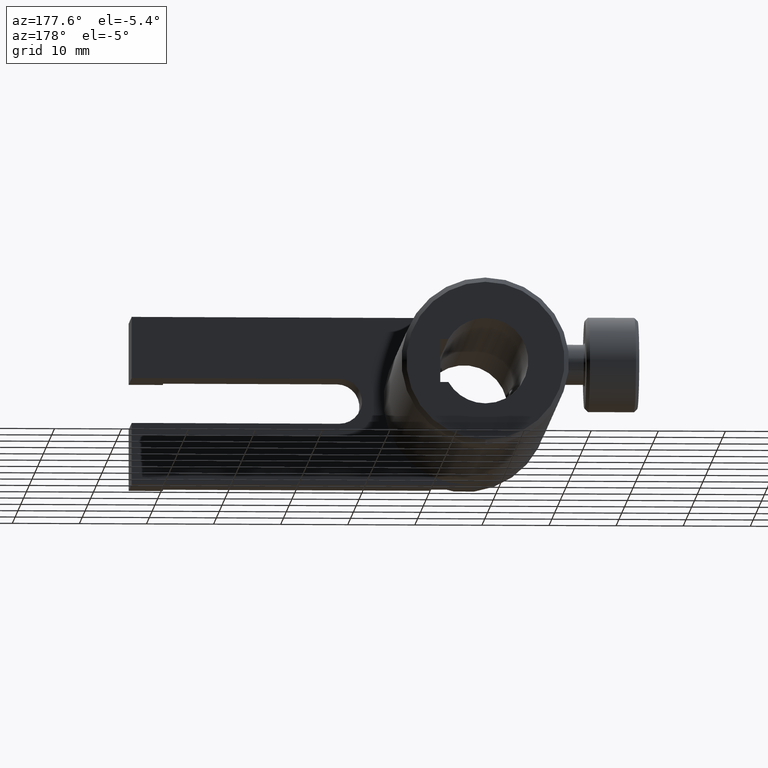
[diagram: clean part render]
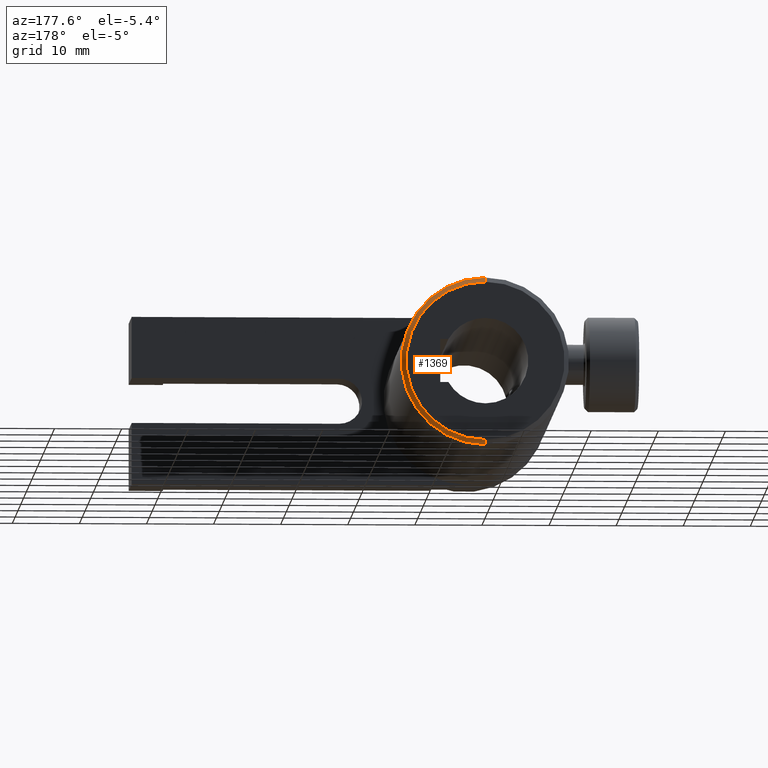
[diagram: same view with one face highlighted and labeled with its STEP entity id]
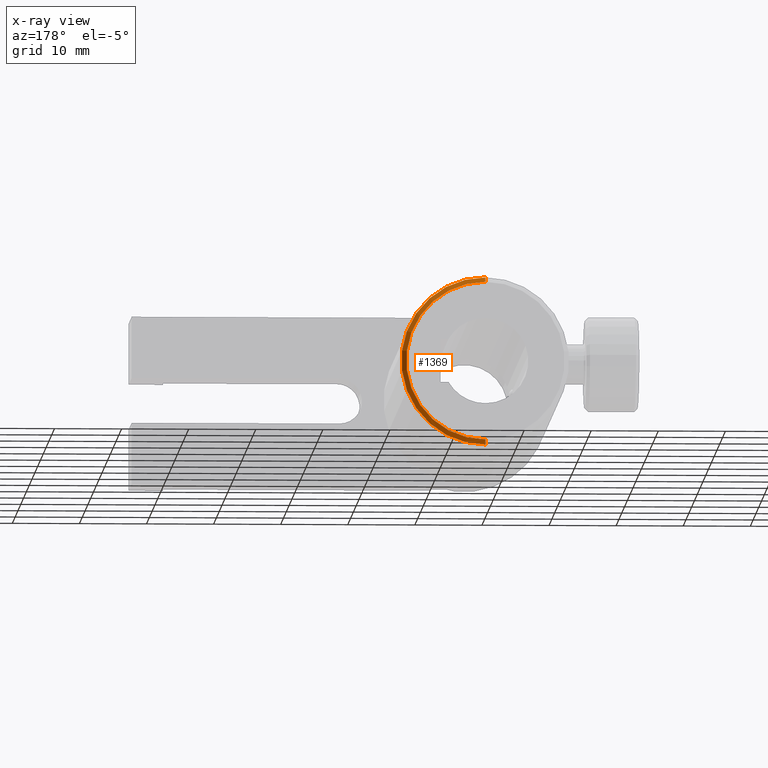
[diagram: x-ray of the same camera — body ghosted, the highlighted face saturated]
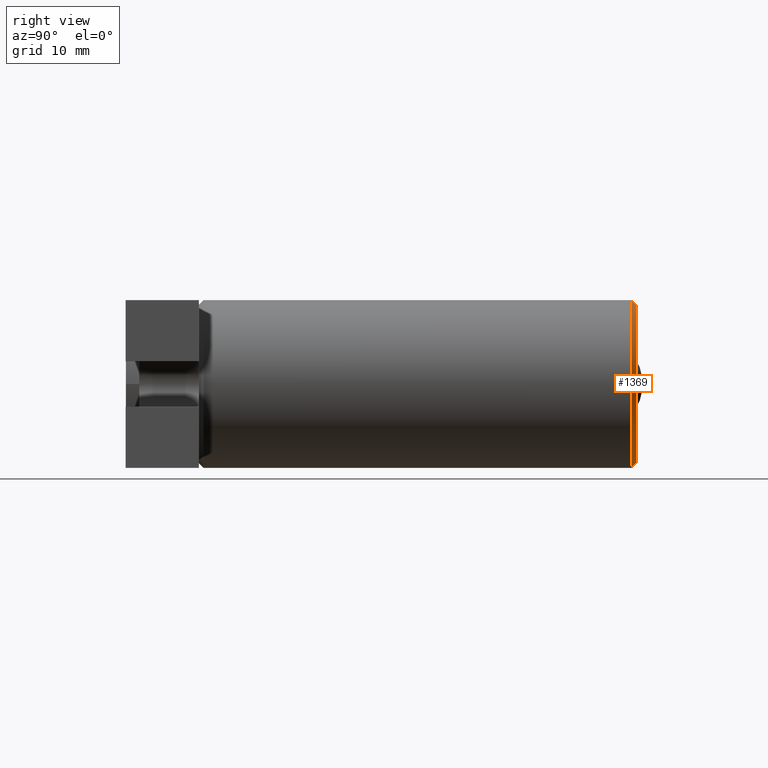
[diagram: same view with one face highlighted and labeled with its STEP entity id]
A machine part, auxiliary view. The second image highlights one B-rep face of the part: STEP entity #1369.
The next image is the same camera in x-ray: the body ghosted, the highlighted face saturated — about 0% of this face is hidden behind the body in this view.
A second angle (right view) of the same face is appended — the face is thin or edge-on in the first view.
In plain terms, the highlighted conical surface has half-angle 45 deg.
Its self-contained STEP definition (entity closure, byte-faithful):
#213 = CARTESIAN_POINT ( 'NONE',  ( 4.123066643891380800, 70.82713478776489100, -1.839923381405735800E-015 ) ) ;
#239 = CARTESIAN_POINT ( 'NONE',  ( 4.123066643891382600, 70.82713478776489100, 11.79680000000001500 ) ) ;
#267 = CONICAL_SURFACE ( 'NONE', #403, 11.79680000000001700, 0.7853981633974359600 ) ;
#281 = DIRECTION ( 'NONE',  ( 0.0000000000000000000, -1.000000000000000000, 0.0000000000000000000 ) ) ;
#403 = AXIS2_PLACEMENT_3D ( 'NONE', #2031, #281, #2952 ) ;
#543 = ORIENTED_EDGE ( 'NONE', *, *, #3560, .F. ) ;
#648 = VERTEX_POINT ( 'NONE', #1524 ) ;
#1030 = ORIENTED_EDGE ( 'NONE', *, *, #2253, .F. ) ;
#1174 = VERTEX_POINT ( 'NONE', #239 ) ;
#1342 = VERTEX_POINT ( 'NONE', #2339 ) ;
#1369 = ADVANCED_FACE ( 'NONE', ( #1502 ), #267, .T. ) ;
#1374 = AXIS2_PLACEMENT_3D ( 'NONE', #2326, #1473, #1749 ) ;
#1473 = DIRECTION ( 'NONE',  ( 0.0000000000000000000, -1.000000000000000000, 0.0000000000000000000 ) ) ;
#1502 = FACE_OUTER_BOUND ( 'NONE', #2603, .T. ) ;
#1524 = CARTESIAN_POINT ( 'NONE',  ( 4.123066643891382600, 70.12713478776488800, 12.49680000000000400 ) ) ;
#1622 = DIRECTION ( 'NONE',  ( 0.0000000000000000000, -0.7071067811865563400, -0.7071067811865388000 ) ) ;
#1749 = DIRECTION ( 'NONE',  ( 0.0000000000000000000, 0.0000000000000000000, 1.000000000000000000 ) ) ;
#1893 = CARTESIAN_POINT ( 'NONE',  ( 4.123066643891382600, 70.82713478776489100, 11.79680000000001500 ) ) ;
#1935 = AXIS2_PLACEMENT_3D ( 'NONE', #213, #3792, #1984 ) ;
#1984 = DIRECTION ( 'NONE',  ( 0.0000000000000000000, 0.0000000000000000000, 1.000000000000000000 ) ) ;
#2031 = CARTESIAN_POINT ( 'NONE',  ( 4.123066643891380800, 70.82713478776489100, -1.839923381405735800E-015 ) ) ;
#2209 = CARTESIAN_POINT ( 'NONE',  ( 4.123066643891380800, 70.12713478776488800, -12.49680000000000700 ) ) ;
#2253 = EDGE_CURVE ( 'NONE', #2806, #648, #3143, .T. ) ;
#2326 = CARTESIAN_POINT ( 'NONE',  ( 4.123066643891380800, 70.12713478776488800, -1.839923381405735800E-015 ) ) ;
#2339 = CARTESIAN_POINT ( 'NONE',  ( 4.123066643891380800, 70.82713478776489100, -11.79680000000001900 ) ) ;
#2365 = ORIENTED_EDGE ( 'NONE', *, *, #2753, .T. ) ;
#2478 = DIRECTION ( 'NONE',  ( 8.659560562354826900E-017, -0.7071067811865563400, 0.7071067811865388000 ) ) ;
#2553 = LINE ( 'NONE', #1893, #2688 ) ;
#2603 = EDGE_LOOP ( 'NONE', ( #543, #2365, #1030, #3202 ) ) ;
#2688 = VECTOR ( 'NONE', #2478, 1000.000000000000000 ) ;
#2748 = VECTOR ( 'NONE', #1622, 1000.000000000000000 ) ;
#2753 = EDGE_CURVE ( 'NONE', #1174, #648, #2553, .T. ) ;
#2806 = VERTEX_POINT ( 'NONE', #2209 ) ;
#2952 = DIRECTION ( 'NONE',  ( 0.0000000000000000000, 0.0000000000000000000, -1.000000000000000000 ) ) ;
#3069 = CARTESIAN_POINT ( 'NONE',  ( 4.123066643891380800, 70.82713478776489100, -11.79680000000001900 ) ) ;
#3143 = CIRCLE ( 'NONE', #1374, 12.49680000000000600 ) ;
#3202 = ORIENTED_EDGE ( 'NONE', *, *, #3444, .F. ) ;
#3301 = LINE ( 'NONE', #3069, #2748 ) ;
#3389 = CIRCLE ( 'NONE', #1935, 11.79680000000001700 ) ;
#3444 = EDGE_CURVE ( 'NONE', #1342, #2806, #3301, .T. ) ;
#3560 = EDGE_CURVE ( 'NONE', #1174, #1342, #3389, .T. ) ;
#3792 = DIRECTION ( 'NONE',  ( 0.0000000000000000000, 1.000000000000000000, 0.0000000000000000000 ) ) ;